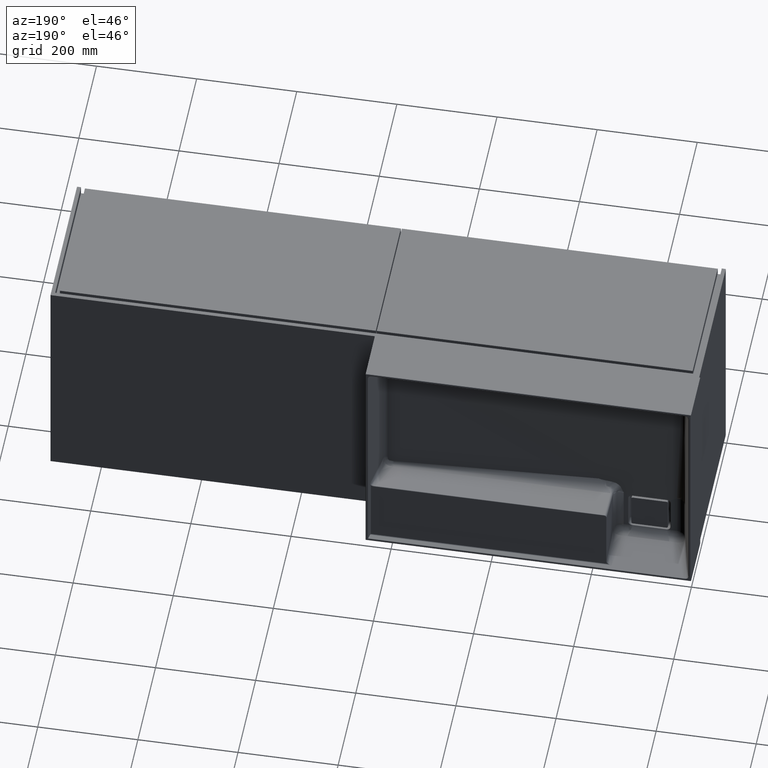
[diagram: clean part render]
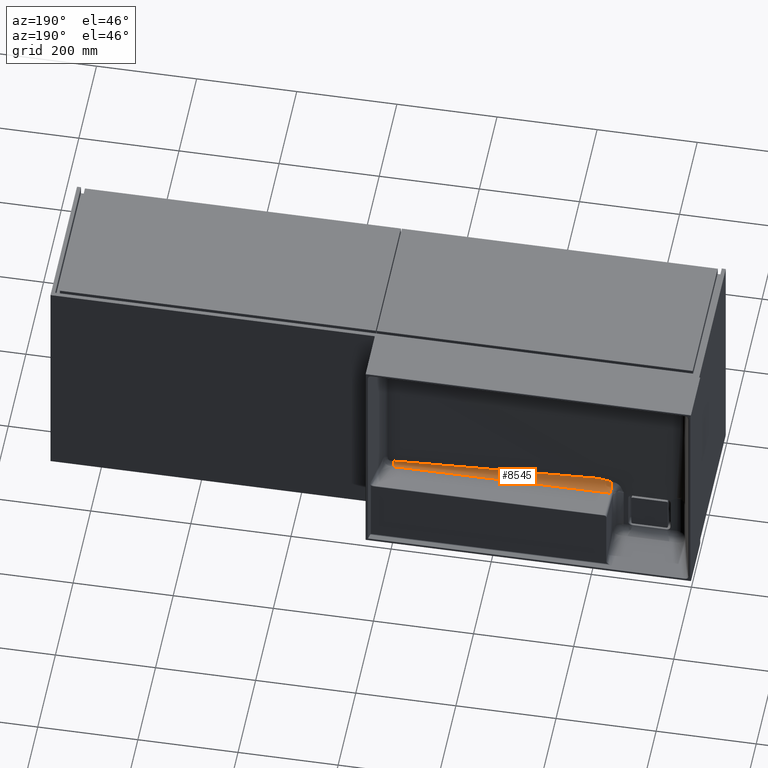
[diagram: same view with one face highlighted and labeled with its STEP entity id]
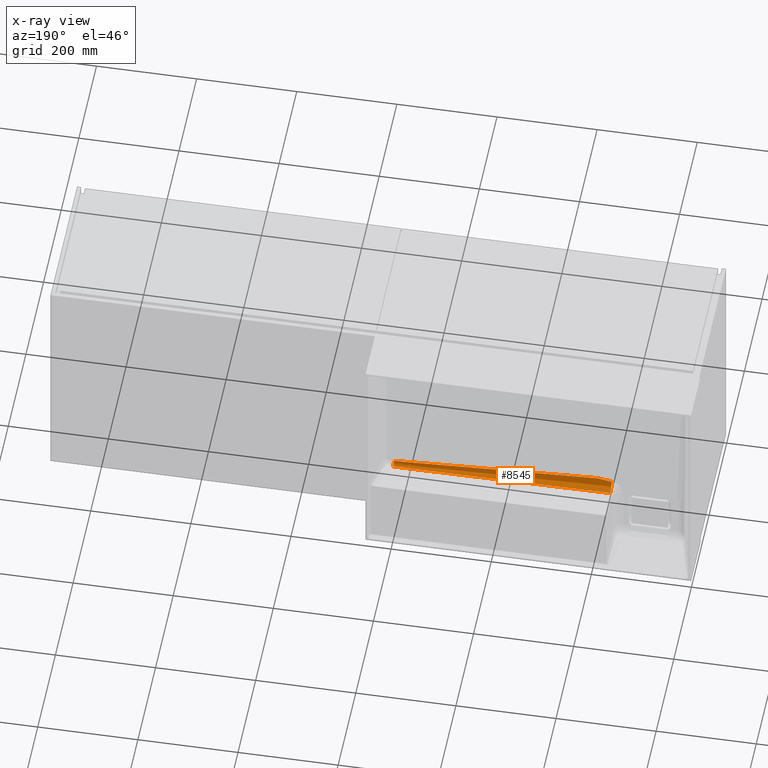
[diagram: x-ray of the same camera — body ghosted, the highlighted face saturated]
A machine part, auxiliary view. The second image highlights one B-rep face of the part: STEP entity #8545.
The next image is the same camera in x-ray: the body ghosted, the highlighted face saturated — about 0% of this face is hidden behind the body in this view.
In plain terms, the highlighted face is a freeform B-spline surface patch.
Its self-contained STEP definition (entity closure, byte-faithful):
#24 = CARTESIAN_POINT ( 'NONE',  ( 173.4152192564654058, 334.5450962369286572, -323.4169326315911803 ) ) ;
#166 = CARTESIAN_POINT ( 'NONE',  ( 193.7021115397278095, 316.7503751772958935, -306.3449249084059147 ) ) ;
#494 = CARTESIAN_POINT ( 'NONE',  ( 606.9240862386012623, 329.6451574235028943, -317.5491274639989570 ) ) ;
#769 = CARTESIAN_POINT ( 'NONE',  ( 173.4152192562205528, 334.5450962275781421, -323.4169326313462989 ) ) ;
#801 = VERTEX_POINT ( 'NONE', #1301 ) ;
#1219 = B_SPLINE_CURVE_WITH_KNOTS ( 'NONE', 3,
 ( #769, #5764, #10750, #15713 ),
 .UNSPECIFIED., .F., .F.,
 ( 4, 4 ),
 ( -0.4346882425457793686, -0.001543048426497328762 ),
 .UNSPECIFIED. ) ;
#1237 = CARTESIAN_POINT ( 'NONE',  ( 606.6846168019783363, 337.2308073617368791, -323.4872604524628628 ) ) ;
#1301 = CARTESIAN_POINT ( 'NONE',  ( 199.3272960926469750, 316.8349497930412326, -304.5496662463578446 ) ) ;
#1373 = CARTESIAN_POINT ( 'NONE',  ( 195.8048643806832843, 316.7731144977071267, -305.8622391571570347 ) ) ;
#1565 = VERTEX_POINT ( 'NONE', #8479 ) ;
#1714 = CARTESIAN_POINT ( 'NONE',  ( 606.8344669809551988, 332.4306366061871927, -321.8099686274488249 ) ) ;
#2321 = B_SPLINE_CURVE_WITH_KNOTS ( 'NONE', 3,
 ( #10245, #15195, #4018, #9029 ),
 .UNSPECIFIED., .F., .F.,
 ( 4, 4 ),
 ( -0.4346882425457793686, -0.02687985659662373017 ),
 .UNSPECIFIED. ) ;
#2455 = CARTESIAN_POINT ( 'NONE',  ( 462.6130180137261050, 324.9795950682679404, -323.1664511682187140 ) ) ;
#2593 = CARTESIAN_POINT ( 'NONE',  ( 198.1148904920754035, 316.8069209751066637, -305.1446317421006142 ) ) ;
#2608 = B_SPLINE_CURVE_WITH_KNOTS ( 'NONE', 3,
 ( #14131, #2939, #7954, #12915, #1714, #6721, #11696, #494, #5482, #10480 ),
 .UNSPECIFIED., .F., .F.,
 ( 4, 2, 2, 2, 4 ),
 ( 0.0000000000000000000, 0.2500000000000000000, 0.5000000000000000000, 0.7500000000000000000, 1.000000000000000000 ),
 .UNSPECIFIED. ) ;
#2676 = CARTESIAN_POINT ( 'NONE',  ( 178.2644837121265766, 316.6443237527140582, -308.5960700885902384 ) ) ;
#2939 = CARTESIAN_POINT ( 'NONE',  ( 606.7164674865443885, 336.2019001532995048, -323.4603175690021999 ) ) ;
#3684 = CARTESIAN_POINT ( 'NONE',  ( 318.3153466064999861, 320.5158006054395514, -304.5403441625886671 ) ) ;
#3833 = CARTESIAN_POINT ( 'NONE',  ( 199.0965661181188580, 316.8278122476280032, -304.7011743568715474 ) ) ;
#3911 = CARTESIAN_POINT ( 'NONE',  ( 187.8723330342562292, 316.7024201626882700, -307.3628622008610591 ) ) ;
#4018 = CARTESIAN_POINT ( 'NONE',  ( 335.1974854116677989, 321.0380432513831579, -305.7710013909620557 ) ) ;
#4051 = ORIENTED_EDGE ( 'NONE', *, *, #11910, .F. ) ;
#4458 = ORIENTED_EDGE ( 'NONE', *, *, #15982, .F. ) ;
#5141 = CARTESIAN_POINT ( 'NONE',  ( 192.1184905281108115, 316.7354091234109319, -306.6626081474803414 ) ) ;
#5167 = EDGE_CURVE ( 'NONE', #7769, #801, #2321, .T. ) ;
#5183 = CARTESIAN_POINT ( 'NONE',  ( 606.6846168019388870, 337.2308073616522961, -323.4872604524607027 ) ) ;
#5472 =( BOUNDED_SURFACE ( )  B_SPLINE_SURFACE ( 2, 3, ( 
 ( #9923, #14873, #3684, #8695 ),
 ( #13654, #2455, #7466, #12435 ),
 ( #1237, #6231, #11217, #24 ) ),
 .UNSPECIFIED., .F., .F., .T. ) 
 B_SPLINE_SURFACE_WITH_KNOTS ( ( 3, 3 ),
 ( 4, 4 ),
 ( 0.0000000000000000000, 1.000000000000000000 ),
 ( -0.4346882425457793686, -0.001543048426497325726 ),
 .UNSPECIFIED. ) 
 GEOMETRIC_REPRESENTATION_ITEM ( )  RATIONAL_B_SPLINE_SURFACE ( (
 ( 1.000000000000000000, 1.000000000000000000, 1.000000000000000000, 1.000000000000000000),
 ( 0.7162975751252874668, 0.7162975751252874668, 0.7162975751252874668, 0.7162975751252874668),
 ( 1.000000000000000000, 1.000000000000000000, 1.000000000000000000, 1.000000000000000000) ) ) 
 REPRESENTATION_ITEM ( '' )  SURFACE ( )  );
#5482 = CARTESIAN_POINT ( 'NONE',  ( 606.9311421262177646, 329.4440222278793726, -316.5197541206961773 ) ) ;
#5697 = CARTESIAN_POINT ( 'NONE',  ( 173.4152192562205528, 334.5450962275781421, -323.4169326313462989 ) ) ;
#5764 = CARTESIAN_POINT ( 'NONE',  ( 317.7278697431762566, 339.0093540719751104, -323.5338333371243493 ) ) ;
#5847 = ORIENTED_EDGE ( 'NONE', *, *, #7730, .F. ) ;
#6231 = CARTESIAN_POINT ( 'NONE',  ( 462.3719663152675139, 332.7665495266904259, -323.3703597469297506 ) ) ;
#6253 = EDGE_LOOP ( 'NONE', ( #4458, #10813, #5847, #4051, #8952 ) ) ;
#6376 = CARTESIAN_POINT ( 'NONE',  ( 195.2801291537134887, 316.7670150134594564, -305.9917124256194825 ) ) ;
#6721 = CARTESIAN_POINT ( 'NONE',  ( 606.8800961171949666, 330.9942483443089145, -320.3347505222997142 ) ) ;
#7466 = CARTESIAN_POINT ( 'NONE',  ( 318.3003675270153394, 320.5153372332215440, -323.0495504626855450 ) ) ;
#7597 = CARTESIAN_POINT ( 'NONE',  ( 197.3579698442219978, 316.7939460989400118, -305.4200484096402306 ) ) ;
#7685 = CARTESIAN_POINT ( 'NONE',  ( 176.1234516139296886, 316.6333546551160794, -308.8289102535058532 ) ) ;
#7730 = EDGE_CURVE ( 'NONE', #12197, #7769, #2608, .T. ) ;
#7769 = VERTEX_POINT ( 'NONE', #11699 ) ;
#7954 = CARTESIAN_POINT ( 'NONE',  ( 606.7483064508004418, 335.1786398577674504, -323.2321963724555189 ) ) ;
#8479 = CARTESIAN_POINT ( 'NONE',  ( 173.9812721945681062, 316.6229568114036965, -309.0496244574906086 ) ) ;
#8545 = ADVANCED_FACE ( 'NONE', ( #16089 ), #5472, .T. ) ;
#8695 = CARTESIAN_POINT ( 'NONE',  ( 174.0026961197891637, 316.0515427703932119, -304.4234434570555550 ) ) ;
#8841 = CARTESIAN_POINT ( 'NONE',  ( 198.8552613548531269, 316.8220531439237106, -304.8234223945301551 ) ) ;
#8918 = CARTESIAN_POINT ( 'NONE',  ( 184.6771654203996889, 316.6808296650964962, -307.8211619812115032 ) ) ;
#8952 = ORIENTED_EDGE ( 'NONE', *, *, #14480, .T. ) ;
#9029 = CARTESIAN_POINT ( 'NONE',  ( 199.3272960926469750, 316.8349497930412326, -304.5496662463578446 ) ) ;
#9916 = CARTESIAN_POINT ( 'NONE',  ( 173.4152192562205528, 334.5450962275781421, -323.4169326313462989 ) ) ;
#9923 = CARTESIAN_POINT ( 'NONE',  ( 606.9319754812725023, 329.4440480074060815, -315.4900018526583949 ) ) ;
#10143 = CARTESIAN_POINT ( 'NONE',  ( 191.0590375558672918, 316.7265386575338084, -306.8509008232568362 ) ) ;
#10245 = CARTESIAN_POINT ( 'NONE',  ( 606.9319754812725023, 329.4440480074060815, -315.4900018526583949 ) ) ;
#10480 = CARTESIAN_POINT ( 'NONE',  ( 606.9319754812725023, 329.4440480074060815, -315.4900018526583949 ) ) ;
#10685 = CARTESIAN_POINT ( 'NONE',  ( 173.8613598786187708, 320.1329318382710767, -323.0395368250057118 ) ) ;
#10750 = CARTESIAN_POINT ( 'NONE',  ( 462.3719663152675139, 332.7665495266904259, -323.3703597469297506 ) ) ;
#10813 = ORIENTED_EDGE ( 'NONE', *, *, #5167, .F. ) ;
#11217 = CARTESIAN_POINT ( 'NONE',  ( 317.7278697431762566, 339.0093540719751104, -323.5338333371243493 ) ) ;
#11369 = CARTESIAN_POINT ( 'NONE',  ( 194.2290445181043594, 316.7556448546314414, -306.2330658854610306 ) ) ;
#11696 = CARTESIAN_POINT ( 'NONE',  ( 606.8985585372915921, 330.4204131196938761, -319.4569766867324461 ) ) ;
#11699 = CARTESIAN_POINT ( 'NONE',  ( 606.9319754812725023, 329.4440480074060815, -315.4900018526583949 ) ) ;
#11910 = EDGE_CURVE ( 'NONE', #15700, #12197, #1219, .T. ) ;
#12197 = VERTEX_POINT ( 'NONE', #5183 ) ;
#12435 = CARTESIAN_POINT ( 'NONE',  ( 173.9877170403045454, 316.0510793981750908, -322.9326497571524328 ) ) ;
#12571 = CARTESIAN_POINT ( 'NONE',  ( 196.8433714277379920, 316.7865976977785749, -305.5760323383971127 ) ) ;
#12656 = CARTESIAN_POINT ( 'NONE',  ( 173.9812721945681062, 316.6229568114036965, -309.0496244574906086 ) ) ;
#12915 = CARTESIAN_POINT ( 'NONE',  ( 606.8073170552663669, 333.2926610861866266, -322.4068700512934811 ) ) ;
#13068 =( BOUNDED_CURVE ( )  B_SPLINE_CURVE ( 2, ( #5697, #10685, #15646 ),
 .UNSPECIFIED., .F., .T. ) 
 B_SPLINE_CURVE_WITH_KNOTS ( ( 3, 3 ),
 ( 0.0000000000000000000, 1.000000000000000000 ),
 .UNSPECIFIED. ) 
 CURVE ( )  GEOMETRIC_REPRESENTATION_ITEM ( )  RATIONAL_B_SPLINE_CURVE ( ( 1.000000000000000000, 0.7641457412185800324, 0.9204434452545302570 ) ) 
 REPRESENTATION_ITEM ( '' )  );
#13654 = CARTESIAN_POINT ( 'NONE',  ( 606.9256685004368137, 329.4438529033143368, -323.2833518737518261 ) ) ;
#13787 = CARTESIAN_POINT ( 'NONE',  ( 198.3646758481632730, 316.8115746191032258, -305.0458492099949694 ) ) ;
#13869 = CARTESIAN_POINT ( 'NONE',  ( 182.5415527639359254, 316.6680791695541188, -308.0918157390240708 ) ) ;
#14131 = CARTESIAN_POINT ( 'NONE',  ( 606.6846168019388870, 337.2308073616522961, -323.4872604524607027 ) ) ;
#14480 = EDGE_CURVE ( 'NONE', #15700, #1565, #13068, .T. ) ;
#14873 = CARTESIAN_POINT ( 'NONE',  ( 462.6193249945617367, 324.9797901723597420, -315.3731011471252259 ) ) ;
#15023 = CARTESIAN_POINT ( 'NONE',  ( 199.3272960926469750, 316.8349497930412326, -304.5496662463578446 ) ) ;
#15097 = CARTESIAN_POINT ( 'NONE',  ( 188.9359916805835553, 316.7100343581346920, -307.2012362778888246 ) ) ;
#15195 = CARTESIAN_POINT ( 'NONE',  ( 471.0608868346715781, 325.2409267287021066, -315.3799392485084923 ) ) ;
#15570 = B_SPLINE_CURVE_WITH_KNOTS ( 'NONE', 3,
 ( #15023, #3833, #8841, #13787, #2593, #7597, #12571, #1373, #6376, #11369, #166, #5141, #10143, #15097, #3911, #8918, #13869, #2676, #7685, #12656 ),
 .UNSPECIFIED., .F., .F.,
 ( 4, 2, 2, 2, 2, 2, 2, 2, 2, 4 ),
 ( 0.0000000000000000000, 0.0008055719474761924900, 0.001611143894952384980, 0.003222287789904791644, 0.004833431684857197874, 0.006444575579809604972, 0.009666863369714418300, 0.01288915115961923423, 0.01933372673942886436, 0.02577830231923849275 ),
 .UNSPECIFIED. ) ;
#15646 = CARTESIAN_POINT ( 'NONE',  ( 173.9812721945681062, 316.6229568114036397, -309.0496244574906086 ) ) ;
#15700 = VERTEX_POINT ( 'NONE', #9916 ) ;
#15713 = CARTESIAN_POINT ( 'NONE',  ( 606.6846168019388870, 337.2308073616522961, -323.4872604524607027 ) ) ;
#15982 = EDGE_CURVE ( 'NONE', #801, #1565, #15570, .T. ) ;
#16089 = FACE_OUTER_BOUND ( 'NONE', #6253, .T. ) ;